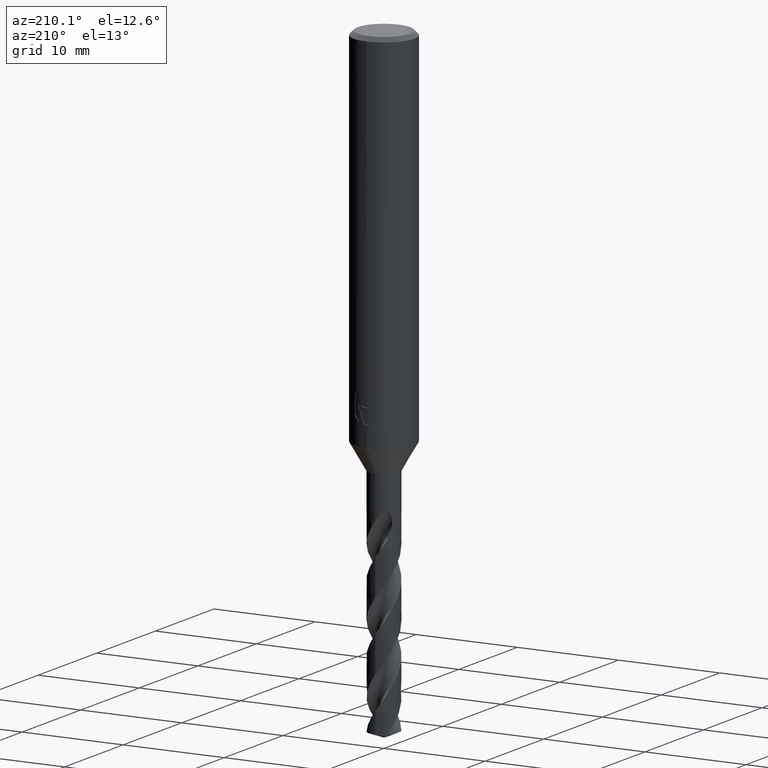
[diagram: clean part render]
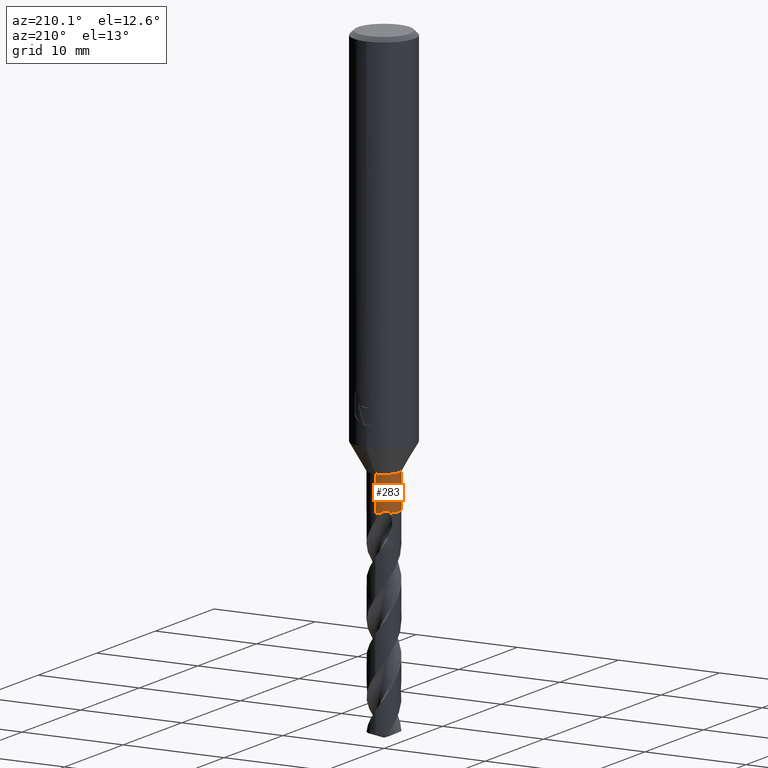
[diagram: same view with one face highlighted and labeled with its STEP entity id]
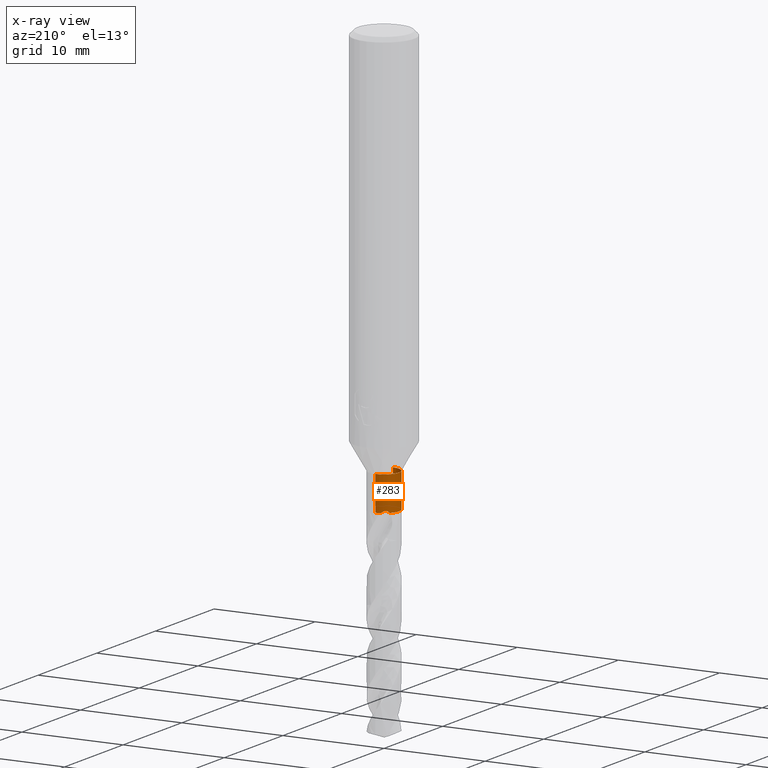
[diagram: x-ray of the same camera — body ghosted, the highlighted face saturated]
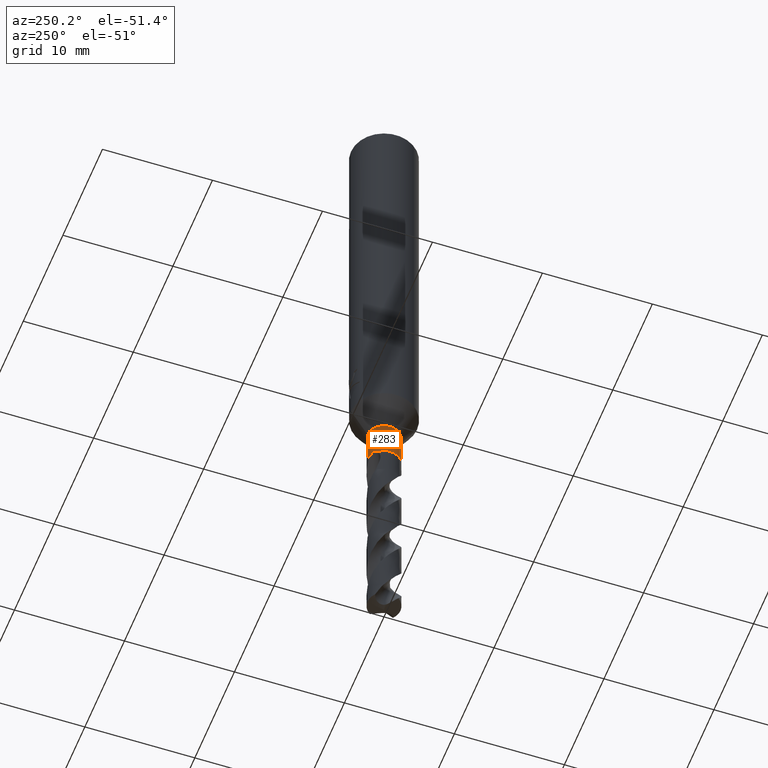
[diagram: same view with one face highlighted and labeled with its STEP entity id]
A machine part, auxiliary view. The second image highlights one B-rep face of the part: STEP entity #283.
The next image is the same camera in x-ray: the body ghosted, the highlighted face saturated — about 0% of this face is hidden behind the body in this view.
A second angle (auxiliary view) of the same face is appended — the face is thin or edge-on in the first view.
In plain terms, the highlighted cylindrical surface (edge-blend (fillet) strip) has radius 1.5 mm, axis along (-0, -0, 1).
Its self-contained STEP definition (entity closure, byte-faithful):
#283=ADVANCED_FACE('',(#790),#791,.T.);
#339=VERTEX_POINT('',#850);
#365=EDGE_CURVE('',#509,#401,#878,.T.);
#387=EDGE_CURVE('',#509,#749,#903,.T.);
#401=VERTEX_POINT('',#917);
#509=VERTEX_POINT('',#1038);
#583=EDGE_CURVE('',#651,#749,#1120,.T.);
#601=EDGE_CURVE('',#635,#339,#1138,.T.);
#635=VERTEX_POINT('',#1177);
#651=VERTEX_POINT('',#1194);
#743=EDGE_CURVE('',#651,#339,#1295,.T.);
#749=VERTEX_POINT('',#1302);
#757=EDGE_CURVE('',#401,#635,#1310,.T.);
#790=FACE_OUTER_BOUND('',#1349,.T.);
#791=CYLINDRICAL_SURFACE('',#1350,1.5);
#850=CARTESIAN_POINT('',(-1.83690953073357E-016,1.5,-42.0));
#878=LINE('',#2150,#2151);
#903=CIRCLE('',#2306,1.5);
#917=CARTESIAN_POINT('',(1.83690953073357E-016,-1.5,-38.5980762113533));
#1038=CARTESIAN_POINT('',(1.83690953073357E-016,-1.5,-42.0));
#1120=B_SPLINE_CURVE_WITH_KNOTS('',3,(#3895,#3896,#3897,#3898,#3899,#3900,#3901,#3902,#3903,#3904,#3905,#3906),.UNSPECIFIED.,.F.,.F.,(4,2,2,2,2,4),(0.0,0.281659851821719,0.453180823093696,0.594484397032093,0.735156084581908,0.885822542146809),.UNSPECIFIED.);
#1138=LINE('',#3950,#3951);
#1177=CARTESIAN_POINT('',(0.0,1.5,-38.5980762113533));
#1194=CARTESIAN_POINT('',(-0.514560192506814,1.4089811241771,-42.0));
#1295=CIRCLE('',#5238,1.5);
#1302=CARTESIAN_POINT('',(-1.13485556220611,0.980868417745135,-42.0));
#1310=CIRCLE('',#5270,1.5);
#1349=EDGE_LOOP('',(#5283,#5284,#5285,#5286,#5287,#5288));
#1350=AXIS2_PLACEMENT_3D('',#5289,#5290,#5291);
#2150=CARTESIAN_POINT('',(1.83690953073357E-016,-1.5,-40.2990381056767));
#2151=VECTOR('',#5369,1.0);
#2306=AXIS2_PLACEMENT_3D('',#5402,#5403,#5404);
#3895=CARTESIAN_POINT('',(-0.514560192506814,1.40898112417709,-42.0));
#3896=CARTESIAN_POINT('',(-0.579635231706974,1.385215706654,-41.9366348589034));
#3897=CARTESIAN_POINT('',(-0.652409133222292,1.3534321837966,-41.8773980540663));
#3898=CARTESIAN_POINT('',(-0.773571941158477,1.28621021592792,-41.8177231366867));
#3899=CARTESIAN_POINT('',(-0.820474518821943,1.25700876675765,-41.8033172924098));
#3900=CARTESIAN_POINT('',(-0.905314765379171,1.19691710834464,-41.8002703172284));
#3901=CARTESIAN_POINT('',(-0.941340000983582,1.16868709607437,-41.8076318594795));
#3902=CARTESIAN_POINT('',(-1.00831932718394,1.11140688073769,-41.83952604845));
#3903=CARTESIAN_POINT('',(-1.03773202982947,1.08372487990741,-41.8632283620581));
#3904=CARTESIAN_POINT('',(-1.09133710327234,1.02981987435125,-41.9233100634398));
#3905=CARTESIAN_POINT('',(-1.11483767753889,1.00402892260717,-41.960258057704));
#3906=CARTESIAN_POINT('',(-1.13485556220611,0.980868417745133,-42.0));
#3950=CARTESIAN_POINT('',(-1.83690953073357E-016,1.5,-40.2990381056767));
#3951=VECTOR('',#5654,1.0);
#5238=AXIS2_PLACEMENT_3D('',#5864,#5865,#5866);
#5270=AXIS2_PLACEMENT_3D('',#5876,#5877,#5878);
#5283=ORIENTED_EDGE('',*,*,#601,.T.);
#5284=ORIENTED_EDGE('',*,*,#743,.F.);
#5285=ORIENTED_EDGE('',*,*,#583,.T.);
#5286=ORIENTED_EDGE('',*,*,#387,.F.);
#5287=ORIENTED_EDGE('',*,*,#365,.T.);
#5288=ORIENTED_EDGE('',*,*,#757,.T.);
#5289=CARTESIAN_POINT('',(0.0,0.0,-40.2990381056767));
#5290=DIRECTION('',(-0.0,-0.0,1.0));
#5291=DIRECTION('',(0.0,1.0,0.0));
#5369=DIRECTION('',(-0.0,-0.0,1.0));
#5402=CARTESIAN_POINT('',(0.0,0.0,-42.0));
#5403=DIRECTION('',(0.0,0.0,-1.0));
#5404=DIRECTION('',(0.0,1.0,0.0));
#5654=DIRECTION('',(0.0,0.0,-1.0));
#5864=CARTESIAN_POINT('',(0.0,0.0,-42.0));
#5865=DIRECTION('',(0.0,0.0,-1.0));
#5866=DIRECTION('',(0.0,1.0,0.0));
#5876=CARTESIAN_POINT('',(0.0,0.0,-38.5980762113533));
#5877=DIRECTION('',(0.0,0.0,-1.0));
#5878=DIRECTION('',(0.0,1.0,0.0));